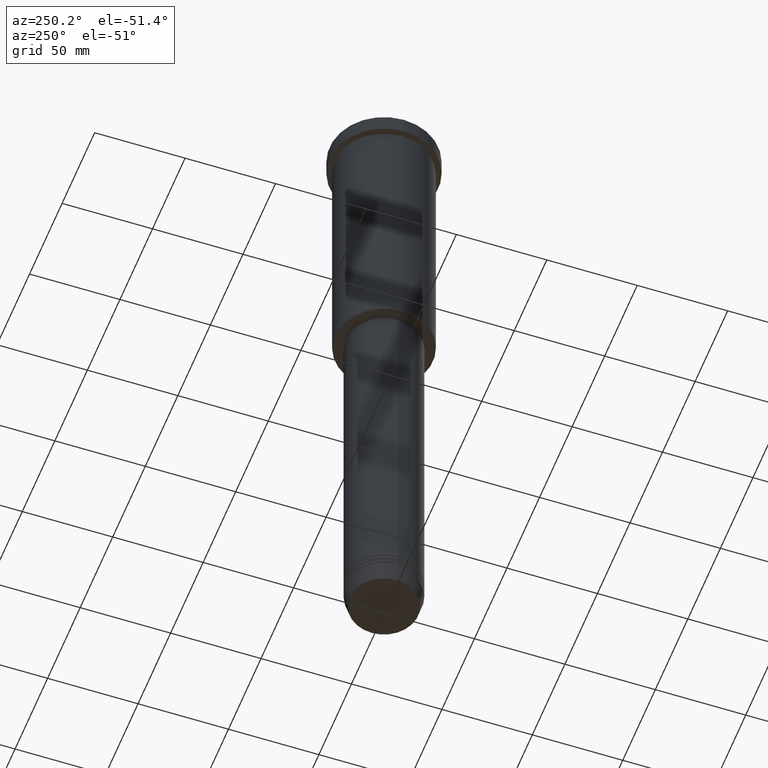
[diagram: clean part render]
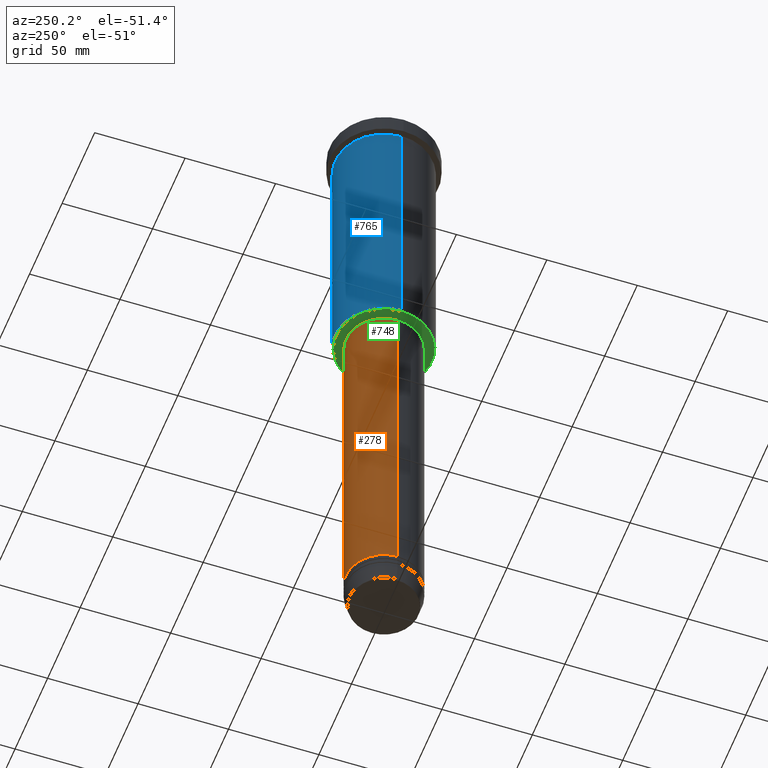
[diagram: same view with three faces highlighted in distinct colors, each labeled with its STEP entity id]
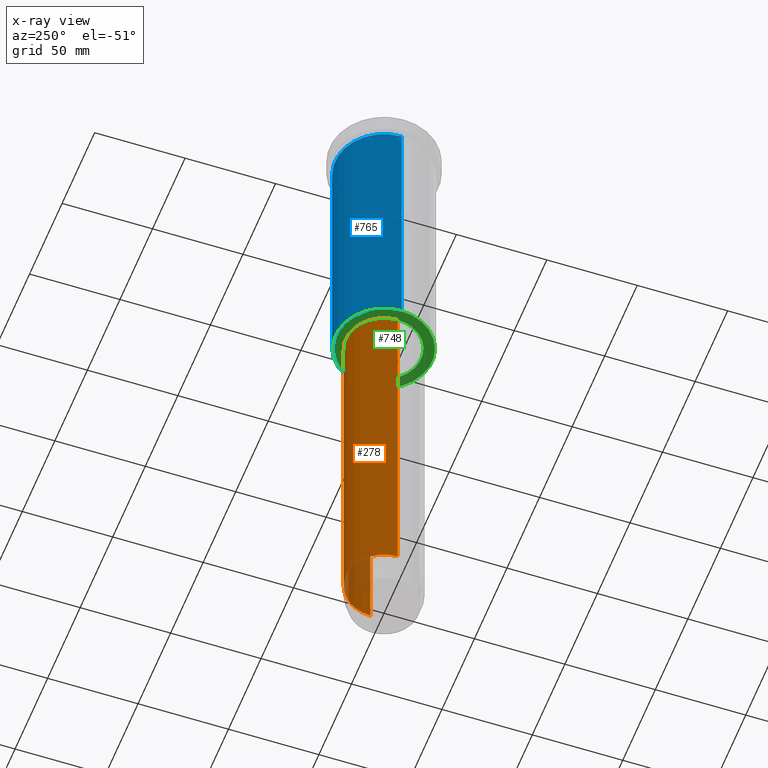
[diagram: x-ray of the same camera — body ghosted, the three highlighted faces saturated]
A machine part, auxiliary view with three faces highlighted in distinct colors.
The next image is the same camera in x-ray (body ghosted, the three faces saturated) — at least one of them is partly hidden behind the body in this view.
Their STEP definitions:

[orange] entity #278 — the highlighted cylindrical surface (partial cylindrical patch) has radius 21 mm, axis along (-0, -0, 1).
#31 = CARTESIAN_POINT ( 'NONE',  ( -21.00000000000000000, 2.571758278209441661E-15, -156.9999999999998863 ) ) ;
#39 = VERTEX_POINT ( 'NONE', #31 ) ;
#45 = DIRECTION ( 'NONE',  ( -0.000000000000000000, -0.000000000000000000, 1.000000000000000000 ) ) ;
#80 = CARTESIAN_POINT ( 'NONE',  ( 21.00000000000000000, 0.000000000000000000, -353.9999999999999432 ) ) ;
#88 = VECTOR ( 'NONE', #45, 1000.000000000000000 ) ;
#96 = CARTESIAN_POINT ( 'NONE',  ( 0.000000000000000000, 0.000000000000000000, -353.9999999999999432 ) ) ;
#146 = CARTESIAN_POINT ( 'NONE',  ( 21.00000000000000000, 0.000000000000000000, -156.9999999999998863 ) ) ;
#161 = DIRECTION ( 'NONE',  ( 1.000000000000000000, 0.000000000000000000, 0.000000000000000000 ) ) ;
#190 = DIRECTION ( 'NONE',  ( 1.000000000000000000, 0.000000000000000000, 0.000000000000000000 ) ) ;
#233 = VERTEX_POINT ( 'NONE', #80 ) ;
#251 = VERTEX_POINT ( 'NONE', #146 ) ;
#278 = ADVANCED_FACE ( 'NONE', ( #899 ), #349, .T. ) ;
#279 = EDGE_CURVE ( 'NONE', #251, #39, #596, .T. ) ;
#303 = DIRECTION ( 'NONE',  ( -0.000000000000000000, -0.000000000000000000, 1.000000000000000000 ) ) ;
#330 = EDGE_CURVE ( 'NONE', #233, #1036, #881, .T. ) ;
#349 = CYLINDRICAL_SURFACE ( 'NONE', #635, 21.00000000000000000 ) ;
#362 = AXIS2_PLACEMENT_3D ( 'NONE', #96, #822, #190 ) ;
#377 = DIRECTION ( 'NONE',  ( -0.000000000000000000, -0.000000000000000000, 1.000000000000000000 ) ) ;
#385 = AXIS2_PLACEMENT_3D ( 'NONE', #731, #377, #925 ) ;
#526 = CARTESIAN_POINT ( 'NONE',  ( -21.00000000000000000, 2.571758278209441661E-15, 0.000000000000000000 ) ) ;
#551 = ORIENTED_EDGE ( 'NONE', *, *, #631, .F. ) ;
#579 = VECTOR ( 'NONE', #303, 1000.000000000000000 ) ;
#596 = CIRCLE ( 'NONE', #385, 21.00000000000000000 ) ;
#601 = CARTESIAN_POINT ( 'NONE',  ( -21.00000000000000000, 2.571758278209441661E-15, -353.9999999999999432 ) ) ;
#605 = LINE ( 'NONE', #526, #88 ) ;
#621 = ORIENTED_EDGE ( 'NONE', *, *, #1123, .T. ) ;
#631 = EDGE_CURVE ( 'NONE', #233, #251, #1120, .T. ) ;
#635 = AXIS2_PLACEMENT_3D ( 'NONE', #714, #1074, #161 ) ;
#714 = CARTESIAN_POINT ( 'NONE',  ( 0.000000000000000000, 0.000000000000000000, 0.000000000000000000 ) ) ;
#731 = CARTESIAN_POINT ( 'NONE',  ( 0.000000000000000000, 0.000000000000000000, -156.9999999999998863 ) ) ;
#822 = DIRECTION ( 'NONE',  ( -0.000000000000000000, -0.000000000000000000, 1.000000000000000000 ) ) ;
#872 = ORIENTED_EDGE ( 'NONE', *, *, #330, .T. ) ;
#881 = CIRCLE ( 'NONE', #362, 21.00000000000000000 ) ;
#899 = FACE_OUTER_BOUND ( 'NONE', #1099, .T. ) ;
#902 = ORIENTED_EDGE ( 'NONE', *, *, #279, .F. ) ;
#925 = DIRECTION ( 'NONE',  ( 1.000000000000000000, 0.000000000000000000, 0.000000000000000000 ) ) ;
#1036 = VERTEX_POINT ( 'NONE', #601 ) ;
#1074 = DIRECTION ( 'NONE',  ( -0.000000000000000000, -0.000000000000000000, 1.000000000000000000 ) ) ;
#1099 = EDGE_LOOP ( 'NONE', ( #872, #621, #902, #551 ) ) ;
#1120 = LINE ( 'NONE', #1142, #579 ) ;
#1123 = EDGE_CURVE ( 'NONE', #1036, #39, #605, .T. ) ;
#1142 = CARTESIAN_POINT ( 'NONE',  ( 21.00000000000000000, 0.000000000000000000, 0.000000000000000000 ) ) ;

[blue] entity #765 — the highlighted cylindrical surface (partial cylindrical patch) has radius 27 mm, axis along (-0, -0, 1).
#18 = CIRCLE ( 'NONE', #614, 27.00000000000000355 ) ;
#54 = EDGE_CURVE ( 'NONE', #927, #712, #213, .T. ) ;
#106 = VECTOR ( 'NONE', #585, 1000.000000000000000 ) ;
#114 = VERTEX_POINT ( 'NONE', #517 ) ;
#151 = EDGE_CURVE ( 'NONE', #293, #927, #18, .T. ) ;
#164 = DIRECTION ( 'NONE',  ( 1.000000000000000000, 0.000000000000000000, 0.000000000000000000 ) ) ;
#183 = ORIENTED_EDGE ( 'NONE', *, *, #669, .F. ) ;
#211 = CARTESIAN_POINT ( 'NONE',  ( 27.00000000000000355, 0.000000000000000000, 0.000000000000000000 ) ) ;
#213 = LINE ( 'NONE', #400, #975 ) ;
#239 = FACE_OUTER_BOUND ( 'NONE', #732, .T. ) ;
#241 = DIRECTION ( 'NONE',  ( -1.000000000000000000, 0.000000000000000000, 0.000000000000000000 ) ) ;
#258 = EDGE_CURVE ( 'NONE', #114, #712, #1126, .T. ) ;
#259 = CARTESIAN_POINT ( 'NONE',  ( 0.000000000000000000, 0.000000000000000000, -10.99999999999999289 ) ) ;
#293 = VERTEX_POINT ( 'NONE', #563 ) ;
#308 = DIRECTION ( 'NONE',  ( -0.000000000000000000, -0.000000000000000000, 1.000000000000000000 ) ) ;
#332 = ORIENTED_EDGE ( 'NONE', *, *, #258, .F. ) ;
#335 = DIRECTION ( 'NONE',  ( 1.000000000000000000, 0.000000000000000000, 0.000000000000000000 ) ) ;
#400 = CARTESIAN_POINT ( 'NONE',  ( -27.00000000000000355, 3.306546357697854128E-15, 0.000000000000000000 ) ) ;
#432 = CARTESIAN_POINT ( 'NONE',  ( 0.000000000000000000, 0.000000000000000000, -155.4999999999999432 ) ) ;
#517 = CARTESIAN_POINT ( 'NONE',  ( 27.00000000000000355, 0.000000000000000000, -10.99999999999999289 ) ) ;
#546 = CYLINDRICAL_SURFACE ( 'NONE', #562, 27.00000000000000355 ) ;
#562 = AXIS2_PLACEMENT_3D ( 'NONE', #1161, #885, #164 ) ;
#563 = CARTESIAN_POINT ( 'NONE',  ( 27.00000000000000355, 0.000000000000000000, -155.4999999999999432 ) ) ;
#585 = DIRECTION ( 'NONE',  ( -0.000000000000000000, -0.000000000000000000, 1.000000000000000000 ) ) ;
#614 = AXIS2_PLACEMENT_3D ( 'NONE', #432, #978, #241 ) ;
#669 = EDGE_CURVE ( 'NONE', #293, #114, #1043, .T. ) ;
#686 = CARTESIAN_POINT ( 'NONE',  ( -27.00000000000000355, 3.306546357697854128E-15, -10.99999999999999289 ) ) ;
#712 = VERTEX_POINT ( 'NONE', #686 ) ;
#732 = EDGE_LOOP ( 'NONE', ( #1151, #966, #332, #183 ) ) ;
#765 = ADVANCED_FACE ( 'NONE', ( #239 ), #546, .T. ) ;
#883 = DIRECTION ( 'NONE',  ( -0.000000000000000000, -0.000000000000000000, 1.000000000000000000 ) ) ;
#885 = DIRECTION ( 'NONE',  ( -0.000000000000000000, -0.000000000000000000, 1.000000000000000000 ) ) ;
#927 = VERTEX_POINT ( 'NONE', #1121 ) ;
#959 = AXIS2_PLACEMENT_3D ( 'NONE', #259, #883, #335 ) ;
#966 = ORIENTED_EDGE ( 'NONE', *, *, #54, .T. ) ;
#975 = VECTOR ( 'NONE', #308, 1000.000000000000000 ) ;
#978 = DIRECTION ( 'NONE',  ( -0.000000000000000000, -0.000000000000000000, 1.000000000000000000 ) ) ;
#1043 = LINE ( 'NONE', #211, #106 ) ;
#1121 = CARTESIAN_POINT ( 'NONE',  ( -27.00000000000000355, 3.306546357697854128E-15, -155.4999999999999432 ) ) ;
#1126 = CIRCLE ( 'NONE', #959, 27.00000000000000355 ) ;
#1151 = ORIENTED_EDGE ( 'NONE', *, *, #151, .T. ) ;
#1161 = CARTESIAN_POINT ( 'NONE',  ( 0.000000000000000000, 0.000000000000000000, 0.000000000000000000 ) ) ;

[green] entity #748 — the highlighted planar face has unit normal (0, 0, -1).
#2 = DIRECTION ( 'NONE',  ( -0.000000000000000000, -0.000000000000000000, 1.000000000000000000 ) ) ;
#69 = CARTESIAN_POINT ( 'NONE',  ( 26.49999999999999645, 0.000000000000000000, -155.9999999999999716 ) ) ;
#155 = FACE_OUTER_BOUND ( 'NONE', #868, .T. ) ;
#158 = EDGE_LOOP ( 'NONE', ( #1078, #832 ) ) ;
#168 = CIRCLE ( 'NONE', #846, 20.50000000000000000 ) ;
#180 = DIRECTION ( 'NONE',  ( 1.000000000000000000, 0.000000000000000000, 0.000000000000000000 ) ) ;
#182 = CARTESIAN_POINT ( 'NONE',  ( -20.50000000000000000, 2.510525938252074481E-15, -155.9999999999999432 ) ) ;
#225 = CIRCLE ( 'NONE', #344, 26.49999999999999645 ) ;
#242 = EDGE_CURVE ( 'NONE', #794, #243, #225, .T. ) ;
#243 = VERTEX_POINT ( 'NONE', #69 ) ;
#246 = DIRECTION ( 'NONE',  ( 0.000000000000000000, 0.000000000000000000, -1.000000000000000000 ) ) ;
#249 = DIRECTION ( 'NONE',  ( -1.000000000000000000, 0.000000000000000000, 0.000000000000000000 ) ) ;
#261 = PLANE ( 'NONE',  #538 ) ;
#298 = VERTEX_POINT ( 'NONE', #649 ) ;
#337 = VERTEX_POINT ( 'NONE', #182 ) ;
#344 = AXIS2_PLACEMENT_3D ( 'NONE', #988, #1148, #703 ) ;
#356 = CARTESIAN_POINT ( 'NONE',  ( 0.000000000000000000, 27.00000000000000355, -155.9999999999999716 ) ) ;
#380 = DIRECTION ( 'NONE',  ( 1.000000000000000000, 0.000000000000000000, 0.000000000000000000 ) ) ;
#393 = CARTESIAN_POINT ( 'NONE',  ( 0.000000000000000000, 0.000000000000000000, -155.9999999999999432 ) ) ;
#408 = EDGE_CURVE ( 'NONE', #298, #337, #168, .T. ) ;
#429 = FACE_BOUND ( 'NONE', #158, .T. ) ;
#431 = CARTESIAN_POINT ( 'NONE',  ( 0.000000000000000000, 0.000000000000000000, -155.9999999999999716 ) ) ;
#473 = CARTESIAN_POINT ( 'NONE',  ( 0.000000000000000000, 0.000000000000000000, -155.9999999999999432 ) ) ;
#502 = ORIENTED_EDGE ( 'NONE', *, *, #1152, .T. ) ;
#525 = EDGE_CURVE ( 'NONE', #337, #298, #728, .T. ) ;
#538 = AXIS2_PLACEMENT_3D ( 'NONE', #356, #246, #636 ) ;
#636 = DIRECTION ( 'NONE',  ( -1.000000000000000000, 0.000000000000000000, -0.000000000000000000 ) ) ;
#649 = CARTESIAN_POINT ( 'NONE',  ( 20.50000000000000000, 0.000000000000000000, -155.9999999999999432 ) ) ;
#703 = DIRECTION ( 'NONE',  ( -1.000000000000000000, 0.000000000000000000, 0.000000000000000000 ) ) ;
#728 = CIRCLE ( 'NONE', #1034, 20.50000000000000000 ) ;
#748 = ADVANCED_FACE ( 'NONE', ( #155, #429 ), #261, .T. ) ;
#770 = CIRCLE ( 'NONE', #958, 26.49999999999999645 ) ;
#794 = VERTEX_POINT ( 'NONE', #1150 ) ;
#832 = ORIENTED_EDGE ( 'NONE', *, *, #525, .T. ) ;
#846 = AXIS2_PLACEMENT_3D ( 'NONE', #393, #852, #180 ) ;
#852 = DIRECTION ( 'NONE',  ( -0.000000000000000000, -0.000000000000000000, 1.000000000000000000 ) ) ;
#865 = DIRECTION ( 'NONE',  ( 0.000000000000000000, 0.000000000000000000, -1.000000000000000000 ) ) ;
#868 = EDGE_LOOP ( 'NONE', ( #502, #1093 ) ) ;
#958 = AXIS2_PLACEMENT_3D ( 'NONE', #431, #865, #249 ) ;
#988 = CARTESIAN_POINT ( 'NONE',  ( 0.000000000000000000, 0.000000000000000000, -155.9999999999999716 ) ) ;
#1034 = AXIS2_PLACEMENT_3D ( 'NONE', #473, #2, #380 ) ;
#1078 = ORIENTED_EDGE ( 'NONE', *, *, #408, .T. ) ;
#1093 = ORIENTED_EDGE ( 'NONE', *, *, #242, .T. ) ;
#1148 = DIRECTION ( 'NONE',  ( 0.000000000000000000, 0.000000000000000000, -1.000000000000000000 ) ) ;
#1150 = CARTESIAN_POINT ( 'NONE',  ( -26.49999999999999645, 3.275930187719169552E-15, -155.9999999999999716 ) ) ;
#1152 = EDGE_CURVE ( 'NONE', #243, #794, #770, .T. ) ;